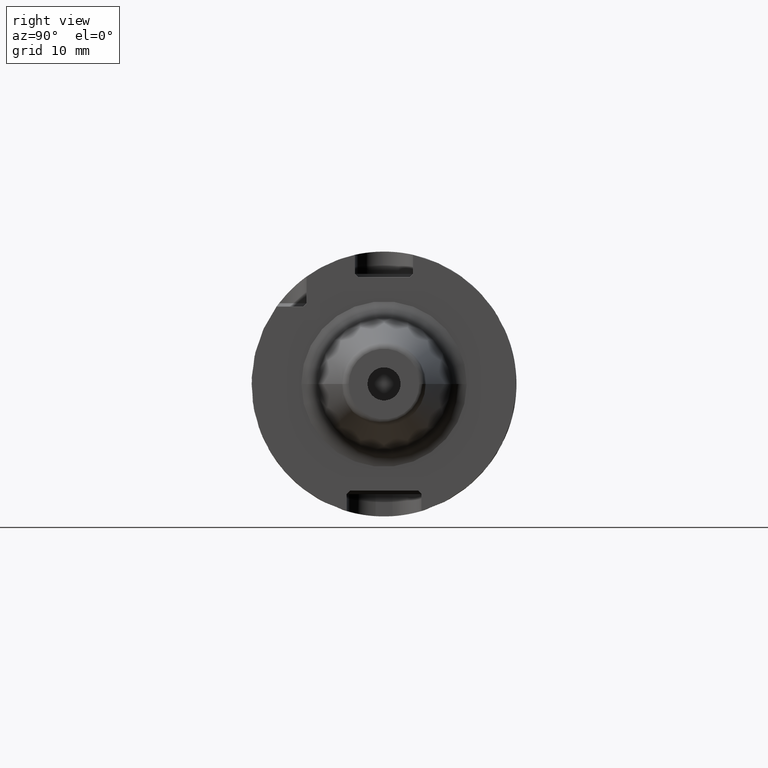
[diagram: clean part render]
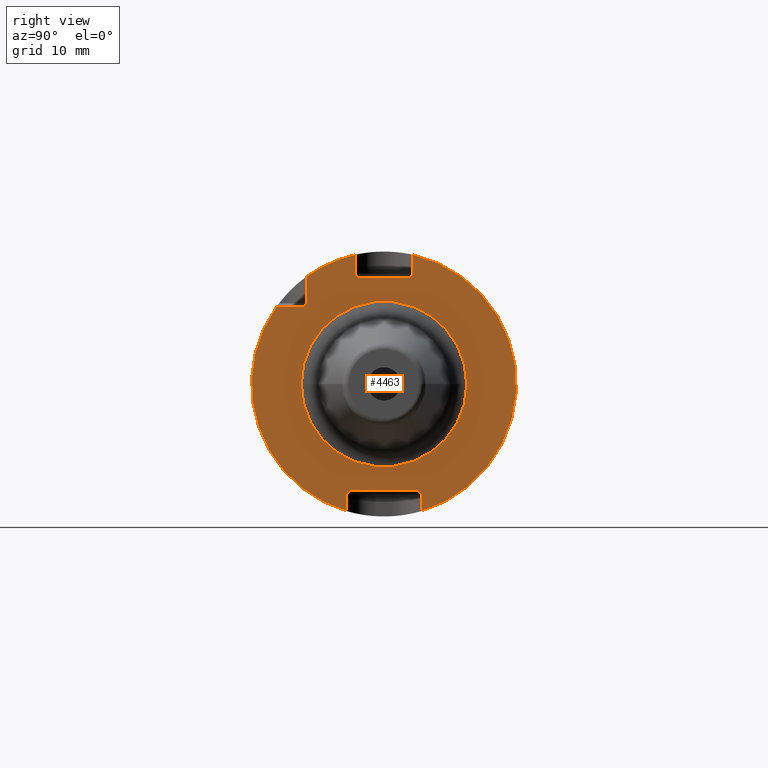
[diagram: same view with one face highlighted and labeled with its STEP entity id]
A machine part, right view. The second image highlights one B-rep face of the part: STEP entity #4463.
In plain terms, the highlighted planar face has unit normal (1, 0, 0).
Its self-contained STEP definition (entity closure, byte-faithful):
#794=CARTESIAN_POINT('',(1.995E1,0.E0,0.E0));
#795=DIRECTION('',(1.E0,0.E0,0.E0));
#796=DIRECTION('',(0.E0,-2.1965625E-1,9.755773325759E-1));
#797=AXIS2_PLACEMENT_3D('',#794,#795,#796);
#803=CARTESIAN_POINT('',(1.995E1,0.E0,0.E0));
#804=DIRECTION('',(1.E0,0.E0,0.E0));
#805=DIRECTION('',(0.E0,-8.114837394397E-1,5.84375E-1));
#806=AXIS2_PLACEMENT_3D('',#803,#804,#805);
#830=CARTESIAN_POINT('',(1.995E1,0.E0,0.E0));
#831=DIRECTION('',(1.E0,0.E0,0.E0));
#832=DIRECTION('',(0.E0,2.8215625E-1,-9.593684644525E-1));
#833=AXIS2_PLACEMENT_3D('',#830,#831,#832);
#1004=DIRECTION('',(0.E0,-7.071067811865E-1,7.071067811865E-1));
#1005=VECTOR('',#1004,5.656854249492E-1);
#1006=CARTESIAN_POINT('',(1.995E1,-3.1145E0,1.29E1));
#1007=LINE('',#1006,#1005);
#1156=DIRECTION('',(0.E0,7.071067811865E-1,-7.071067811865E-1));
#1157=VECTOR('',#1156,5.656854249492E-1);
#1158=CARTESIAN_POINT('',(1.995E1,4.1145E0,-1.29E1));
#1159=LINE('',#1158,#1157);
#1260=DIRECTION('',(0.E0,-7.071067811865E-1,-7.071067811865E-1));
#1261=VECTOR('',#1260,5.656854249492E-1);
#1262=CARTESIAN_POINT('',(1.995E1,3.5145E0,1.33E1));
#1263=LINE('',#1262,#1261);
#1373=DIRECTION('',(0.E0,1.E0,0.E0));
#1374=VECTOR('',#1373,3.233739831035E0);
#1375=CARTESIAN_POINT('',(1.995E1,-1.298373983103E1,9.35E0));
#1376=LINE('',#1375,#1374);
#1377=DIRECTION('',(0.E0,0.E0,-1.E0));
#1378=VECTOR('',#1377,3.233739831035E0);
#1379=CARTESIAN_POINT('',(1.995E1,-9.35E0,1.298373983103E1));
#1380=LINE('',#1379,#1378);
#1381=DIRECTION('',(0.E0,0.E0,-1.E0));
#1382=VECTOR('',#1381,2.309237321215E0);
#1383=CARTESIAN_POINT('',(1.995E1,-3.5145E0,1.560923732121E1));
#1384=LINE('',#1383,#1382);
#1385=DIRECTION('',(0.E0,1.E0,0.E0));
#1386=VECTOR('',#1385,6.229E0);
#1387=CARTESIAN_POINT('',(1.995E1,-3.1145E0,1.29E1));
#1388=LINE('',#1387,#1386);
#1389=DIRECTION('',(0.E0,0.E0,-1.E0));
#1390=VECTOR('',#1389,2.309237321215E0);
#1391=CARTESIAN_POINT('',(1.995E1,3.5145E0,1.560923732121E1));
#1392=LINE('',#1391,#1390);
#1393=DIRECTION('',(0.E0,0.E0,1.E0));
#1394=VECTOR('',#1393,2.049895431240E0);
#1395=CARTESIAN_POINT('',(1.995E1,4.5145E0,-1.534989543124E1));
#1396=LINE('',#1395,#1394);
#1397=DIRECTION('',(0.E0,-1.E0,0.E0));
#1398=VECTOR('',#1397,8.229E0);
#1399=CARTESIAN_POINT('',(1.995E1,4.1145E0,-1.29E1));
#1400=LINE('',#1399,#1398);
#1401=DIRECTION('',(0.E0,0.E0,1.E0));
#1402=VECTOR('',#1401,2.049895431240E0);
#1403=CARTESIAN_POINT('',(1.995E1,-4.5145E0,-1.534989543124E1));
#1404=LINE('',#1403,#1402);
#1405=CARTESIAN_POINT('',(1.995E1,0.E0,0.E0));
#1406=DIRECTION('',(1.E0,0.E0,0.E0));
#1407=DIRECTION('',(0.E0,-1.E0,0.E0));
#1408=AXIS2_PLACEMENT_3D('',#1405,#1406,#1407);
#1410=CARTESIAN_POINT('',(1.995E1,0.E0,0.E0));
#1411=DIRECTION('',(1.E0,0.E0,0.E0));
#1412=DIRECTION('',(0.E0,1.E0,0.E0));
#1413=AXIS2_PLACEMENT_3D('',#1410,#1411,#1412);
#1507=DIRECTION('',(0.E0,-7.071067811865E-1,-7.071067811865E-1));
#1508=VECTOR('',#1507,5.656854249492E-1);
#1509=CARTESIAN_POINT('',(1.995E1,-9.35E0,9.75E0));
#1510=LINE('',#1509,#1508);
#1523=DIRECTION('',(0.E0,7.071067811865E-1,7.071067811865E-1));
#1524=VECTOR('',#1523,5.656854249492E-1);
#1525=CARTESIAN_POINT('',(1.995E1,-4.5145E0,-1.33E1));
#1526=LINE('',#1525,#1524);
#2893=CARTESIAN_POINT('',(1.995E1,-3.1145E0,1.29E1));
#2894=CARTESIAN_POINT('',(1.995E1,-3.5145E0,1.33E1));
#2895=VERTEX_POINT('',#2893);
#2896=VERTEX_POINT('',#2894);
#2897=CARTESIAN_POINT('',(1.995E1,3.5145E0,1.33E1));
#2898=CARTESIAN_POINT('',(1.995E1,3.1145E0,1.29E1));
#2899=VERTEX_POINT('',#2897);
#2900=VERTEX_POINT('',#2898);
#2925=CARTESIAN_POINT('',(1.995E1,4.1145E0,-1.29E1));
#2926=CARTESIAN_POINT('',(1.995E1,4.5145E0,-1.33E1));
#2927=VERTEX_POINT('',#2925);
#2928=VERTEX_POINT('',#2926);
#2929=CARTESIAN_POINT('',(1.995E1,-4.5145E0,-1.33E1));
#2930=CARTESIAN_POINT('',(1.995E1,-4.1145E0,-1.29E1));
#2931=VERTEX_POINT('',#2929);
#2932=VERTEX_POINT('',#2930);
#2943=CARTESIAN_POINT('',(1.995E1,-9.35E0,9.75E0));
#2944=CARTESIAN_POINT('',(1.995E1,-9.75E0,9.35E0));
#2945=VERTEX_POINT('',#2943);
#2946=VERTEX_POINT('',#2944);
#2971=CARTESIAN_POINT('',(1.995E1,-1.298373983103E1,9.35E0));
#2972=VERTEX_POINT('',#2971);
#2973=CARTESIAN_POINT('',(1.995E1,-9.35E0,1.298373983103E1));
#2974=VERTEX_POINT('',#2973);
#3011=CARTESIAN_POINT('',(1.995E1,3.5145E0,1.560923732121E1));
#3012=VERTEX_POINT('',#3011);
#3013=CARTESIAN_POINT('',(1.995E1,-4.5145E0,-1.534989543124E1));
#3014=VERTEX_POINT('',#3013);
#3015=CARTESIAN_POINT('',(1.995E1,-3.5145E0,1.560923732121E1));
#3016=VERTEX_POINT('',#3015);
#3017=CARTESIAN_POINT('',(1.995E1,4.5145E0,-1.534989543124E1));
#3018=VERTEX_POINT('',#3017);
#3075=CARTESIAN_POINT('',(1.995E1,-1.000078434164E1,0.E0));
#3076=CARTESIAN_POINT('',(1.995E1,1.000078434164E1,0.E0));
#3077=VERTEX_POINT('',#3075);
#3078=VERTEX_POINT('',#3076);
#4429=CARTESIAN_POINT('',(1.995E1,0.E0,0.E0));
#4430=DIRECTION('',(1.E0,0.E0,0.E0));
#4431=DIRECTION('',(0.E0,-1.E0,0.E0));
#4432=AXIS2_PLACEMENT_3D('',#4429,#4430,#4431);
#4433=PLANE('',#4432);
#4435=ORIENTED_EDGE('',*,*,#4434,.T.);
#4437=ORIENTED_EDGE('',*,*,#4436,.F.);
#4439=ORIENTED_EDGE('',*,*,#4438,.F.);
#4440=ORIENTED_EDGE('',*,*,#3844,.F.);
#4441=ORIENTED_EDGE('',*,*,#4030,.T.);
#4442=ORIENTED_EDGE('',*,*,#4113,.F.);
#4443=ORIENTED_EDGE('',*,*,#4362,.T.);
#4444=ORIENTED_EDGE('',*,*,#4344,.F.);
#4445=ORIENTED_EDGE('',*,*,#4313,.F.);
#4446=ORIENTED_EDGE('',*,*,#3876,.F.);
#4447=ORIENTED_EDGE('',*,*,#4241,.T.);
#4448=ORIENTED_EDGE('',*,*,#4212,.F.);
#4449=ORIENTED_EDGE('',*,*,#4179,.T.);
#4451=ORIENTED_EDGE('',*,*,#4450,.F.);
#4453=ORIENTED_EDGE('',*,*,#4452,.F.);
#4454=ORIENTED_EDGE('',*,*,#3856,.F.);
#4455=EDGE_LOOP('',(#4435,#4437,#4439,#4440,#4441,#4442,#4443,#4444,#4445,#4446,
#4447,#4448,#4449,#4451,#4453,#4454));
#4456=FACE_OUTER_BOUND('',#4455,.F.);
#4458=ORIENTED_EDGE('',*,*,#4457,.T.);
#4460=ORIENTED_EDGE('',*,*,#4459,.T.);
#4461=EDGE_LOOP('',(#4458,#4460));
#4462=FACE_BOUND('',#4461,.F.);
#4463=ADVANCED_FACE('',(#4456,#4462),#4433,.T.);
#798=CIRCLE('',#797,1.6E1);
#807=CIRCLE('',#806,1.6E1);
#834=CIRCLE('',#833,1.6E1);
#1409=CIRCLE('',#1408,1.000078434164E1);
#1414=CIRCLE('',#1413,1.000078434164E1);
#3844=EDGE_CURVE('',#3016,#2974,#798,.T.);
#3856=EDGE_CURVE('',#2972,#3014,#807,.T.);
#3876=EDGE_CURVE('',#3018,#3012,#834,.T.);
#4030=EDGE_CURVE('',#3016,#2896,#1384,.T.);
#4113=EDGE_CURVE('',#2895,#2896,#1007,.T.);
#4179=EDGE_CURVE('',#2927,#2932,#1400,.T.);
#4212=EDGE_CURVE('',#2927,#2928,#1159,.T.);
#4241=EDGE_CURVE('',#3018,#2928,#1396,.T.);
#4313=EDGE_CURVE('',#3012,#2899,#1392,.T.);
#4344=EDGE_CURVE('',#2899,#2900,#1263,.T.);
#4362=EDGE_CURVE('',#2895,#2900,#1388,.T.);
#4434=EDGE_CURVE('',#2972,#2946,#1376,.T.);
#4436=EDGE_CURVE('',#2945,#2946,#1510,.T.);
#4438=EDGE_CURVE('',#2974,#2945,#1380,.T.);
#4450=EDGE_CURVE('',#2931,#2932,#1526,.T.);
#4452=EDGE_CURVE('',#3014,#2931,#1404,.T.);
#4457=EDGE_CURVE('',#3077,#3078,#1409,.T.);
#4459=EDGE_CURVE('',#3078,#3077,#1414,.T.);